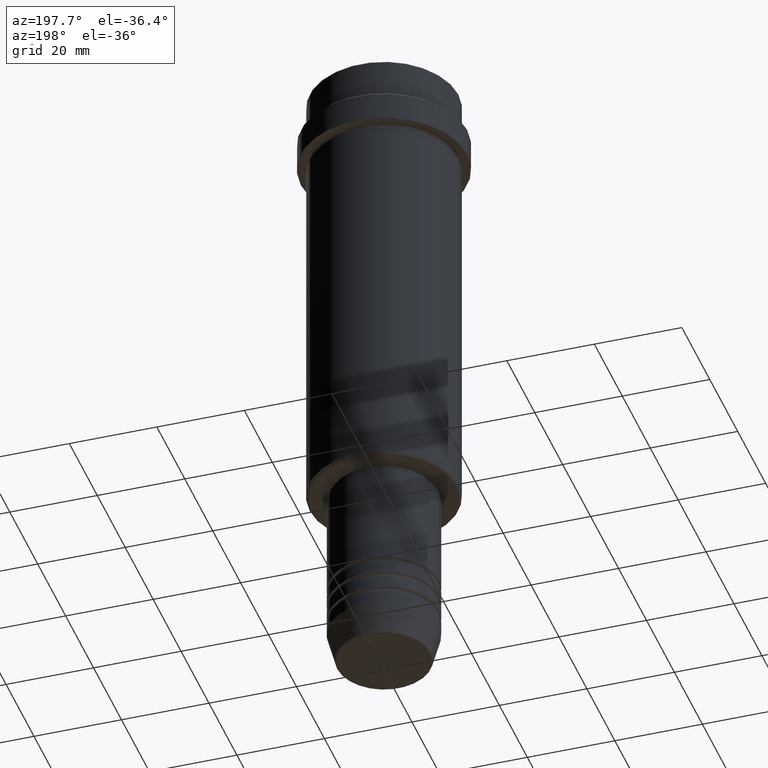
[diagram: clean part render]
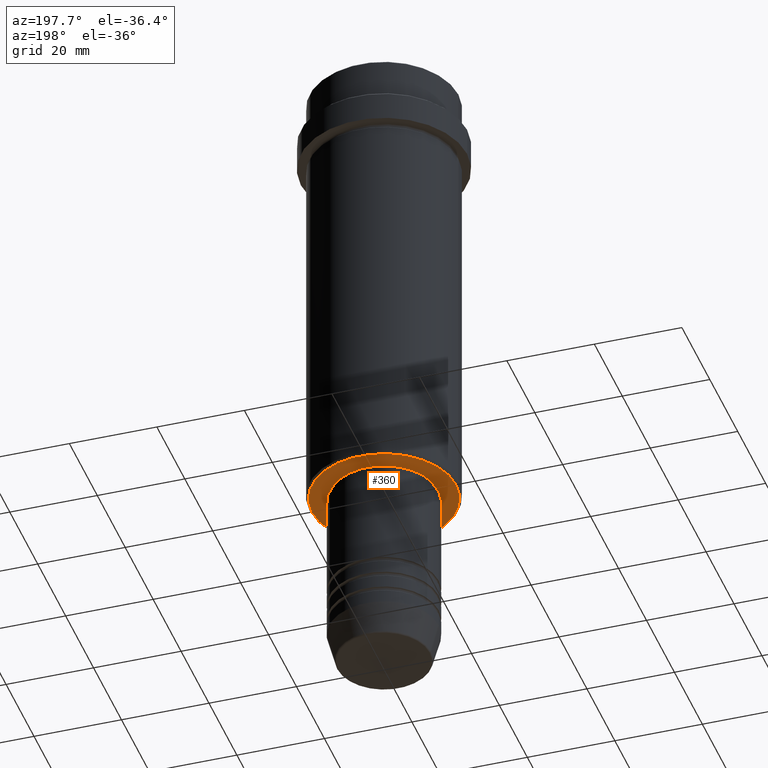
[diagram: same view with one face highlighted and labeled with its STEP entity id]
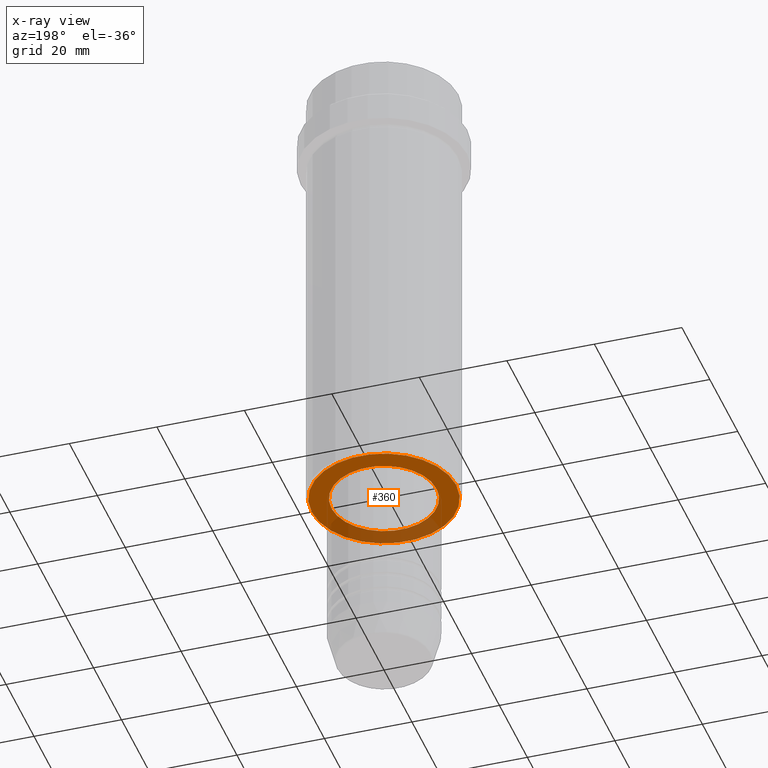
[diagram: x-ray of the same camera — body ghosted, the highlighted face saturated]
A machine part, auxiliary view. The second image highlights one B-rep face of the part: STEP entity #360.
The next image is the same camera in x-ray: the body ghosted, the highlighted face saturated — about 29% of this face is hidden behind the body in this view.
In plain terms, the highlighted planar face has unit normal (0, 0, -1).
Its self-contained STEP definition (entity closure, byte-faithful):
#119 = CIRCLE ( 'NONE', #868, 11.99999999999999289 ) ;
#247 = EDGE_CURVE ( 'NONE', #446, #349, #1177, .T. ) ;
#275 = FACE_OUTER_BOUND ( 'NONE', #1238, .T. ) ;
#296 = CARTESIAN_POINT ( 'NONE',  ( 0.000000000000000000, 17.00000000000000000, -106.0000000000000000 ) ) ;
#349 = VERTEX_POINT ( 'NONE', #436 ) ;
#360 = ADVANCED_FACE ( 'NONE', ( #275, #1348 ), #788, .T. ) ;
#381 = DIRECTION ( 'NONE',  ( -0.000000000000000000, -0.000000000000000000, 1.000000000000000000 ) ) ;
#436 = CARTESIAN_POINT ( 'NONE',  ( 16.49999999999997158, 0.000000000000000000, -106.0000000000000000 ) ) ;
#446 = VERTEX_POINT ( 'NONE', #1096 ) ;
#451 = CARTESIAN_POINT ( 'NONE',  ( 0.000000000000000000, 0.000000000000000000, -106.0000000000000000 ) ) ;
#466 = ORIENTED_EDGE ( 'NONE', *, *, #1368, .T. ) ;
#470 = CARTESIAN_POINT ( 'NONE',  ( 0.000000000000000000, 0.000000000000000000, -106.0000000000000000 ) ) ;
#486 = ORIENTED_EDGE ( 'NONE', *, *, #1383, .T. ) ;
#489 = DIRECTION ( 'NONE',  ( -1.000000000000000000, 0.000000000000000000, 0.000000000000000000 ) ) ;
#557 = EDGE_LOOP ( 'NONE', ( #466, #894 ) ) ;
#697 = DIRECTION ( 'NONE',  ( 0.000000000000000000, 0.000000000000000000, -1.000000000000000000 ) ) ;
#713 = DIRECTION ( 'NONE',  ( 1.000000000000000000, 0.000000000000000000, 0.000000000000000000 ) ) ;
#725 = DIRECTION ( 'NONE',  ( -1.000000000000000000, 0.000000000000000000, -0.000000000000000000 ) ) ;
#729 = AXIS2_PLACEMENT_3D ( 'NONE', #1245, #797, #1143 ) ;
#743 = VERTEX_POINT ( 'NONE', #1344 ) ;
#747 = CIRCLE ( 'NONE', #1018, 11.99999999999999289 ) ;
#766 = VERTEX_POINT ( 'NONE', #911 ) ;
#782 = DIRECTION ( 'NONE',  ( 1.000000000000000000, 0.000000000000000000, 0.000000000000000000 ) ) ;
#788 = PLANE ( 'NONE',  #1020 ) ;
#794 = AXIS2_PLACEMENT_3D ( 'NONE', #470, #697, #489 ) ;
#797 = DIRECTION ( 'NONE',  ( 0.000000000000000000, 0.000000000000000000, -1.000000000000000000 ) ) ;
#868 = AXIS2_PLACEMENT_3D ( 'NONE', #451, #1343, #782 ) ;
#894 = ORIENTED_EDGE ( 'NONE', *, *, #1217, .T. ) ;
#911 = CARTESIAN_POINT ( 'NONE',  ( 11.99999999999999289, 0.000000000000000000, -106.0000000000000000 ) ) ;
#1018 = AXIS2_PLACEMENT_3D ( 'NONE', #1284, #381, #713 ) ;
#1020 = AXIS2_PLACEMENT_3D ( 'NONE', #296, #1388, #725 ) ;
#1096 = CARTESIAN_POINT ( 'NONE',  ( -16.49999999999997158, 2.051283388571814520E-15, -106.0000000000000000 ) ) ;
#1143 = DIRECTION ( 'NONE',  ( -1.000000000000000000, 0.000000000000000000, 0.000000000000000000 ) ) ;
#1154 = CIRCLE ( 'NONE', #729, 16.49999999999997158 ) ;
#1177 = CIRCLE ( 'NONE', #794, 16.49999999999997158 ) ;
#1217 = EDGE_CURVE ( 'NONE', #743, #766, #747, .T. ) ;
#1238 = EDGE_LOOP ( 'NONE', ( #486, #1412 ) ) ;
#1245 = CARTESIAN_POINT ( 'NONE',  ( 0.000000000000000000, 0.000000000000000000, -106.0000000000000000 ) ) ;
#1284 = CARTESIAN_POINT ( 'NONE',  ( 0.000000000000000000, 0.000000000000000000, -106.0000000000000000 ) ) ;
#1343 = DIRECTION ( 'NONE',  ( -0.000000000000000000, -0.000000000000000000, 1.000000000000000000 ) ) ;
#1344 = CARTESIAN_POINT ( 'NONE',  ( -11.99999999999999289, 1.469576158976823158E-15, -106.0000000000000000 ) ) ;
#1348 = FACE_BOUND ( 'NONE', #557, .T. ) ;
#1368 = EDGE_CURVE ( 'NONE', #766, #743, #119, .T. ) ;
#1383 = EDGE_CURVE ( 'NONE', #349, #446, #1154, .T. ) ;
#1388 = DIRECTION ( 'NONE',  ( 0.000000000000000000, 0.000000000000000000, -1.000000000000000000 ) ) ;
#1412 = ORIENTED_EDGE ( 'NONE', *, *, #247, .T. ) ;